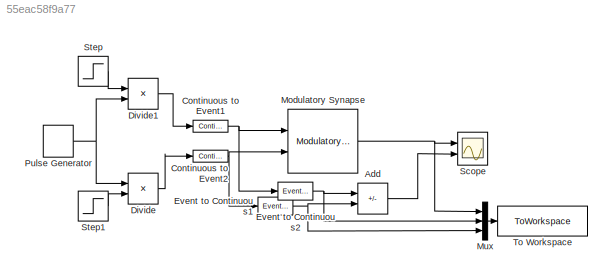
MODEL slx_55eac58f9a77
KIND model
CONFIG AbsTol = auto
CONFIG EnableMultiTasking = off
CONFIG FixedStep = auto
CONFIG MaxStep = auto
CONFIG MinStep = auto
CONFIG RelTol = 1e-3
CONFIG SampleTimeConstraint = Unconstrained
CONFIG SolverName = VariableStepAuto
CONFIG StartTime = 0.0
CONFIG StopTime = 15
BLOCK [Sum] Add
  IconShape = rectangular
  Inputs = +-
  Ports = [2, 1]
BLOCK [Reference] Continuous to Event1  REF=neuromorphic_blocks/Events Transmission Blocks/Continuous to Event  (lib defined in slx_48105648e755)
  Ports = [1, 1]
  SourceBlock = neuromorphic_blocks/Events Transmission Blocks/Continuous to Event
  SourceProductName = Neuromorphic Toolbox
  SourceType = Continuous to Event
BLOCK [Reference] Continuous to Event2  REF=neuromorphic_blocks/Events Transmission Blocks/Continuous to Event  (lib defined in slx_48105648e755)
  Ports = [1, 1]
  SourceBlock = neuromorphic_blocks/Events Transmission Blocks/Continuous to Event
  SourceProductName = Neuromorphic Toolbox
  SourceType = Continuous to Event
BLOCK [Product] Divide
  Inputs = **
  Ports = [2, 1]
BLOCK [Product] Divide1
  Inputs = **
  Ports = [2, 1]
BLOCK [Reference] Event to Continuous1  REF=neuromorphic_blocks/Events Transmission Blocks/Event to Continuous  (lib defined in slx_48105648e755)
  Ports = [1, 1]
  SourceBlock = neuromorphic_blocks/Events Transmission Blocks/Event to Continuous
  SourceProductName = Neuromorphic Toolbox
  SourceType = Event to Continuous
BLOCK [Reference] Event to Continuous2  REF=neuromorphic_blocks/Events Transmission Blocks/Event to Continuous  (lib defined in slx_48105648e755)
  Ports = [1, 1]
  SourceBlock = neuromorphic_blocks/Events Transmission Blocks/Event to Continuous
  SourceProductName = Neuromorphic Toolbox
  SourceType = Event to Continuous
BLOCK [Reference] Modulatory Synapse  REF=neuromorphic_blocks/Neural Blocks/Modulatory Synapse  (lib defined in slx_48105648e755)
  Ports = [2, 1]
  SourceBlock = neuromorphic_blocks/Neural Blocks/Modulatory Synapse
  SourceProductName = Neuromorphic Toolbox
  SourceType = Modulatory Synapse
BLOCK [Mux] Mux
  DisplayOption = bar
  Inputs = 3
  Ports = [3, 1]
BLOCK [DiscretePulseGenerator] Pulse Generator
  Amplitude = 20
  Period = 0.5
  PhaseDelay = 0.25
  Ports = [0, 1]
  PulseType = Time based
  PulseWidth = 2
BLOCK [Scope] Scope
  Floating = off
  NumInputPorts = 2
  Ports = [2]
  ScopeSpecificationString = Simulink.scopes.TimeScopeBlockCfg('CurrentConfiguration', extmgr.ConfigurationSet(extmgr.Configuration('Core','General UI',true),extmgr.Configuration('Core','Source UI',true),extmgr.Configuration('Sources','WiredSimulink',true),extmgr.Configuration('Visuals','Time Domain',true,'SerializedDisplays',{struct('MinYLimReal','-0.61412','MaxYLimReal','0.45396','YLabelReal','','MinYLimMag','0.00000','MaxY...<+1981ch>
BLOCK [Step] Step
  After = 0
  Before = 1
  SampleTime = 0
  Time = 4
BLOCK [Step] Step1
  SampleTime = 0
  Time = 6
BLOCK [ToWorkspace] To Workspace
  FixptAsFi = on
  MaxDataPoints = inf
  Ports = [1]
  SampleTime = -1
  SaveFormat = Structure With Time
  VariableName = modulation
LINE Add:1 -> Scope:2
NET Continuous to Event1:1 -> Event to Continuous2:1, Modulatory Synapse:1
NET Continuous to Event2:1 -> Event to Continuous1:1, Modulatory Synapse:2
LINE Divide1:1 -> Continuous to Event1:1
LINE Divide:1 -> Continuous to Event2:1
NET Event to Continuous1:1 -> Add:2, Mux:3
NET Event to Continuous2:1 -> Add:1, Mux:2
NET Modulatory Synapse:1 -> Mux:1, Scope:1
LINE Mux:1 -> To Workspace:1
NET Pulse Generator:1 -> Divide1:2, Divide:1
LINE Step1:1 -> Divide:2
LINE Step:1 -> Divide1:1
note: NET lines group one-source signal fan-out (src -> all destinations, sorted); 1:1 wires keep LINE
